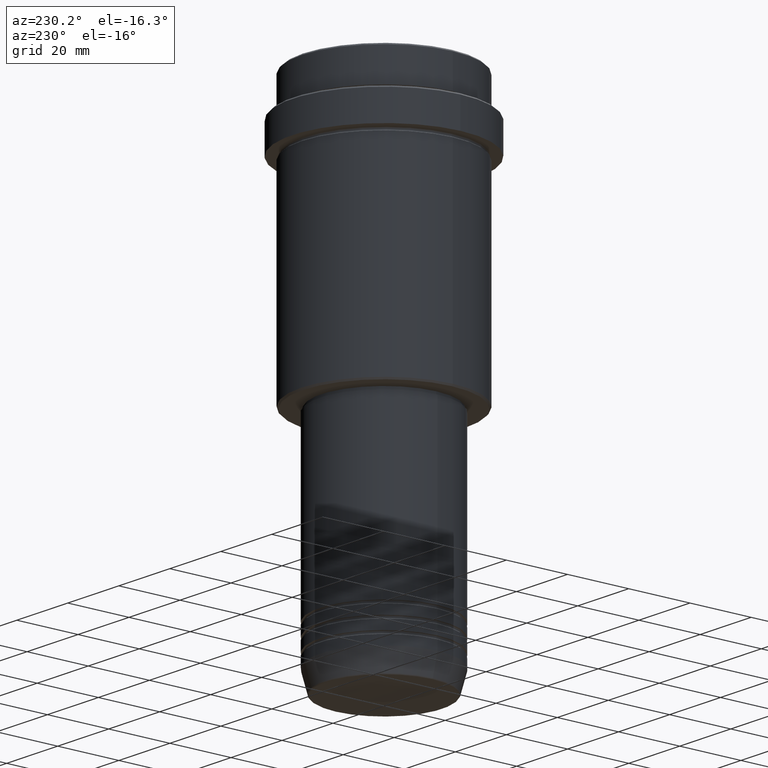
[diagram: clean part render]
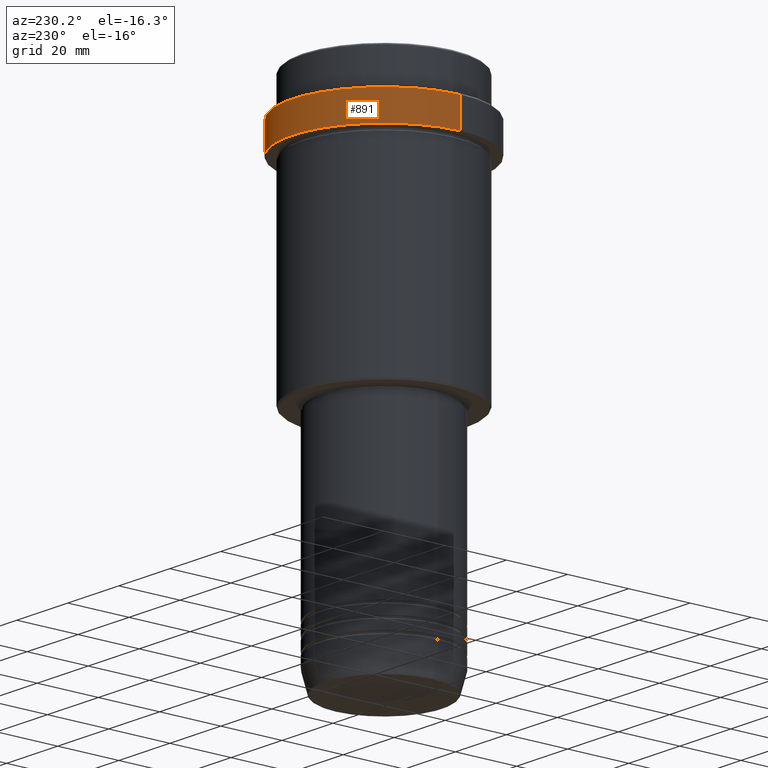
[diagram: same view with one face highlighted and labeled with its STEP entity id]
A machine part, auxiliary view. The second image highlights one B-rep face of the part: STEP entity #891.
In plain terms, the highlighted cylindrical surface (partial cylindrical patch) has radius 30 mm, axis along (-0, -0, 1).
Its self-contained STEP definition (entity closure, byte-faithful):
#96 = DIRECTION ( 'NONE',  ( 1.000000000000000000, 0.000000000000000000, 0.000000000000000000 ) ) ;
#113 = ORIENTED_EDGE ( 'NONE', *, *, #426, .T. ) ;
#123 = EDGE_CURVE ( 'NONE', #414, #133, #413, .T. ) ;
#133 = VERTEX_POINT ( 'NONE', #1050 ) ;
#136 = DIRECTION ( 'NONE',  ( -0.000000000000000000, -0.000000000000000000, 1.000000000000000000 ) ) ;
#146 = EDGE_CURVE ( 'NONE', #414, #1099, #252, .T. ) ;
#158 = DIRECTION ( 'NONE',  ( 1.000000000000000000, 0.000000000000000000, 0.000000000000000000 ) ) ;
#214 = VERTEX_POINT ( 'NONE', #743 ) ;
#252 = CIRCLE ( 'NONE', #466, 29.99999999999999645 ) ;
#262 = DIRECTION ( 'NONE',  ( -0.000000000000000000, -0.000000000000000000, 1.000000000000000000 ) ) ;
#287 = DIRECTION ( 'NONE',  ( -0.000000000000000000, -0.000000000000000000, 1.000000000000000000 ) ) ;
#300 = VECTOR ( 'NONE', #136, 1000.000000000000000 ) ;
#337 = CARTESIAN_POINT ( 'NONE',  ( 0.000000000000000000, 0.000000000000000000, -12.50000000000000888 ) ) ;
#413 = LINE ( 'NONE', #601, #893 ) ;
#414 = VERTEX_POINT ( 'NONE', #1224 ) ;
#426 = EDGE_CURVE ( 'NONE', #1099, #214, #1123, .T. ) ;
#466 = AXIS2_PLACEMENT_3D ( 'NONE', #839, #512, #945 ) ;
#512 = DIRECTION ( 'NONE',  ( -0.000000000000000000, -0.000000000000000000, 1.000000000000000000 ) ) ;
#560 = ORIENTED_EDGE ( 'NONE', *, *, #1245, .T. ) ;
#601 = CARTESIAN_POINT ( 'NONE',  ( 30.00000000000000000, 0.000000000000000000, 0.000000000000000000 ) ) ;
#666 = ORIENTED_EDGE ( 'NONE', *, *, #146, .T. ) ;
#743 = CARTESIAN_POINT ( 'NONE',  ( -30.00000000000000000, 3.673940397442059178E-15, -12.50000000000000888 ) ) ;
#788 = CARTESIAN_POINT ( 'NONE',  ( 0.000000000000000000, 0.000000000000000000, 0.000000000000000000 ) ) ;
#839 = CARTESIAN_POINT ( 'NONE',  ( 0.000000000000000000, 0.000000000000000000, -22.00000000000000355 ) ) ;
#862 = CARTESIAN_POINT ( 'NONE',  ( -29.99999999999999645, 3.673940397442058389E-15, -22.00000000000000355 ) ) ;
#891 = ADVANCED_FACE ( 'NONE', ( #894 ), #1329, .T. ) ;
#893 = VECTOR ( 'NONE', #287, 1000.000000000000000 ) ;
#894 = FACE_OUTER_BOUND ( 'NONE', #1189, .T. ) ;
#900 = AXIS2_PLACEMENT_3D ( 'NONE', #788, #262, #158 ) ;
#945 = DIRECTION ( 'NONE',  ( 1.000000000000000000, 0.000000000000000000, 0.000000000000000000 ) ) ;
#960 = ORIENTED_EDGE ( 'NONE', *, *, #123, .F. ) ;
#978 = DIRECTION ( 'NONE',  ( 0.000000000000000000, 0.000000000000000000, -1.000000000000000000 ) ) ;
#1001 = CARTESIAN_POINT ( 'NONE',  ( -30.00000000000000000, 3.673940397442059178E-15, 0.000000000000000000 ) ) ;
#1050 = CARTESIAN_POINT ( 'NONE',  ( 30.00000000000000000, 0.000000000000000000, -12.50000000000000888 ) ) ;
#1085 = CIRCLE ( 'NONE', #1196, 30.00000000000000000 ) ;
#1099 = VERTEX_POINT ( 'NONE', #862 ) ;
#1123 = LINE ( 'NONE', #1001, #300 ) ;
#1189 = EDGE_LOOP ( 'NONE', ( #666, #113, #560, #960 ) ) ;
#1196 = AXIS2_PLACEMENT_3D ( 'NONE', #337, #978, #96 ) ;
#1224 = CARTESIAN_POINT ( 'NONE',  ( 29.99999999999999645, 0.000000000000000000, -22.00000000000000355 ) ) ;
#1245 = EDGE_CURVE ( 'NONE', #214, #133, #1085, .T. ) ;
#1329 = CYLINDRICAL_SURFACE ( 'NONE', #900, 30.00000000000000000 ) ;